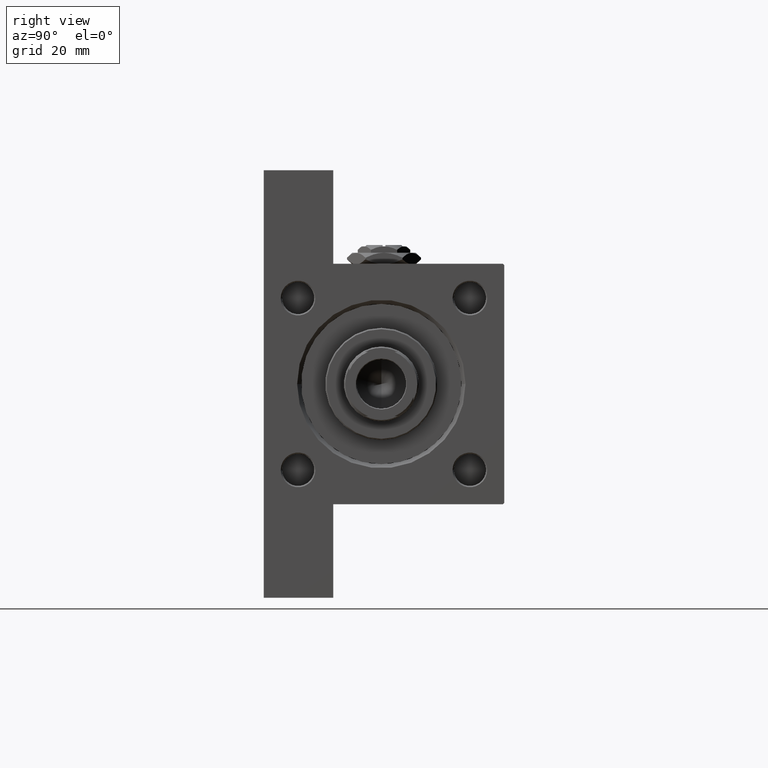
[diagram: clean part render]
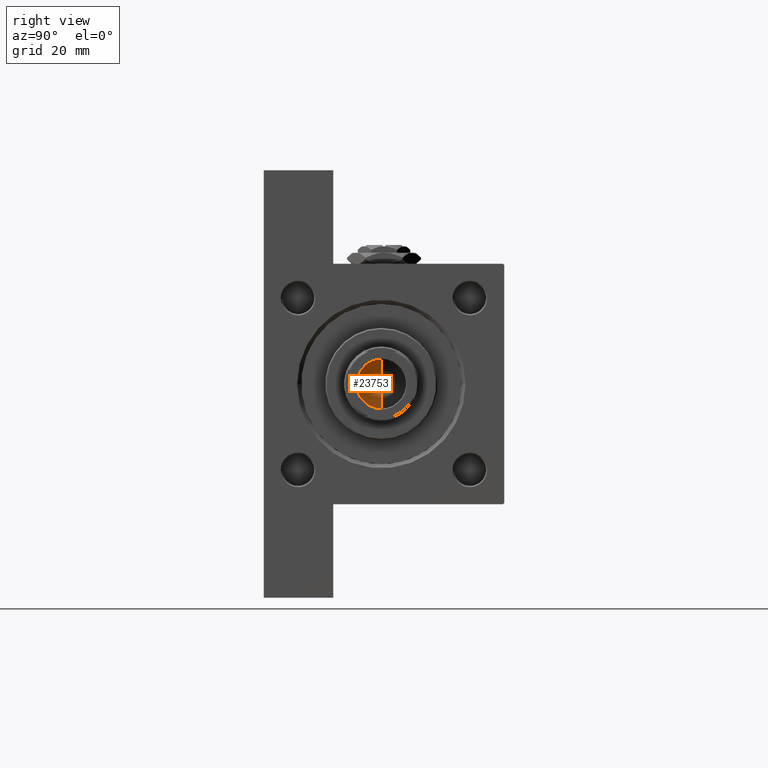
[diagram: same view with one face highlighted and labeled with its STEP entity id]
A machine part, right view. The second image highlights one B-rep face of the part: STEP entity #23753.
In plain terms, the highlighted conical surface has half-angle 59 deg.
Its self-contained STEP definition (entity closure, byte-faithful):
#2050 = CIRCLE ( 'NONE', #25313, 9.249999999999992895 ) ;
#4646 = CARTESIAN_POINT ( 'NONE',  ( -9.769621978240258809E-15, 0.000000000000000000, 109.4420392739950501 ) ) ;
#5434 = DIRECTION ( 'NONE',  ( -0.000000000000000000, -0.000000000000000000, 1.000000000000000000 ) ) ;
#5584 = DIRECTION ( 'NONE',  ( -0.8571673007021117785, 1.049727191138617956E-16, 0.5150380749100550437 ) ) ;
#6077 = LINE ( 'NONE', #10561, #29847 ) ;
#6926 = DIRECTION ( 'NONE',  ( -0.000000000000000000, -0.000000000000000000, 1.000000000000000000 ) ) ;
#8649 = EDGE_CURVE ( 'NONE', #42118, #33882, #2050, .T. ) ;
#9420 = DIRECTION ( 'NONE',  ( 1.000000000000000000, 0.000000000000000000, 0.000000000000000000 ) ) ;
#10561 = CARTESIAN_POINT ( 'NONE',  ( -9.249999999999992895, 1.132798289211300712E-15, 114.9999999999999858 ) ) ;
#10680 = FACE_OUTER_BOUND ( 'NONE', #39204, .T. ) ;
#17464 = CARTESIAN_POINT ( 'NONE',  ( 0.000000000000000000, 0.000000000000000000, 114.9999999999999858 ) ) ;
#18617 = DIRECTION ( 'NONE',  ( 0.8571673007021117785, 0.000000000000000000, 0.5150380749100550437 ) ) ;
#23753 = ADVANCED_FACE ( 'NONE', ( #10680 ), #32832, .F. ) ;
#25313 = AXIS2_PLACEMENT_3D ( 'NONE', #17464, #5434, #9420 ) ;
#27033 = DIRECTION ( 'NONE',  ( 1.000000000000000000, 0.000000000000000000, 0.000000000000000000 ) ) ;
#28404 = CARTESIAN_POINT ( 'NONE',  ( -9.249999999999992895, 1.132798289211300712E-15, 114.9999999999999858 ) ) ;
#28668 = ORIENTED_EDGE ( 'NONE', *, *, #40633, .T. ) ;
#29508 = VERTEX_POINT ( 'NONE', #4646 ) ;
#29847 = VECTOR ( 'NONE', #5584, 1000.000000000000000 ) ;
#30913 = EDGE_CURVE ( 'NONE', #29508, #33882, #6077, .T. ) ;
#31332 = CARTESIAN_POINT ( 'NONE',  ( 9.249999999999992895, 0.000000000000000000, 114.9999999999999858 ) ) ;
#32832 = CONICAL_SURFACE ( 'NONE', #40092, 9.249999999999992895, 1.029744258676653423 ) ;
#33722 = CARTESIAN_POINT ( 'NONE',  ( 9.249999999999992895, 0.000000000000000000, 114.9999999999999858 ) ) ;
#33882 = VERTEX_POINT ( 'NONE', #28404 ) ;
#35224 = ORIENTED_EDGE ( 'NONE', *, *, #30913, .F. ) ;
#35458 = ORIENTED_EDGE ( 'NONE', *, *, #8649, .T. ) ;
#37245 = LINE ( 'NONE', #33722, #44201 ) ;
#39204 = EDGE_LOOP ( 'NONE', ( #35224, #28668, #35458 ) ) ;
#40092 = AXIS2_PLACEMENT_3D ( 'NONE', #46156, #6926, #27033 ) ;
#40633 = EDGE_CURVE ( 'NONE', #29508, #42118, #37245, .T. ) ;
#42118 = VERTEX_POINT ( 'NONE', #31332 ) ;
#44201 = VECTOR ( 'NONE', #18617, 1000.000000000000000 ) ;
#46156 = CARTESIAN_POINT ( 'NONE',  ( 0.000000000000000000, 0.000000000000000000, 114.9999999999999858 ) ) ;